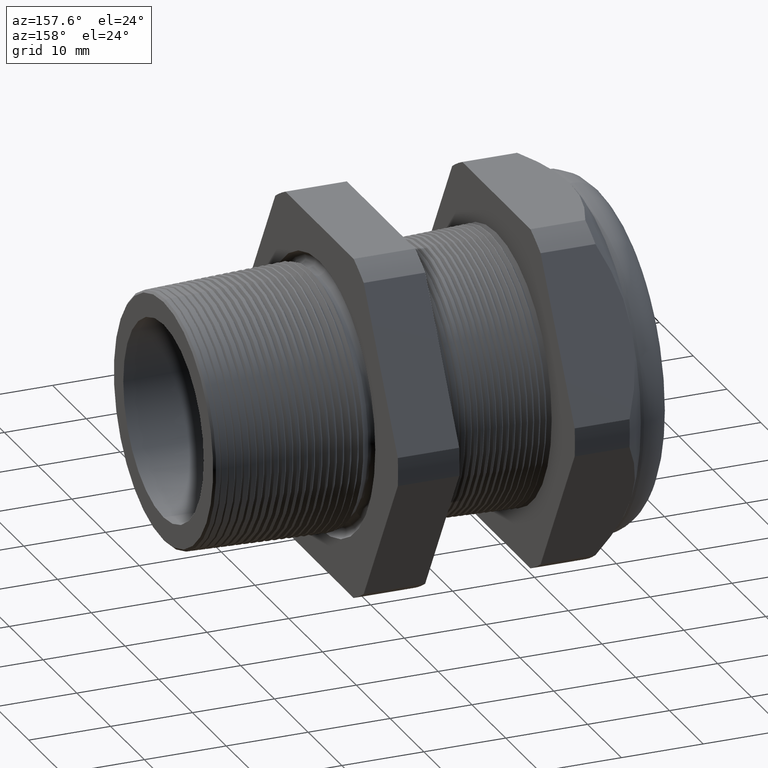
[diagram: clean part render]
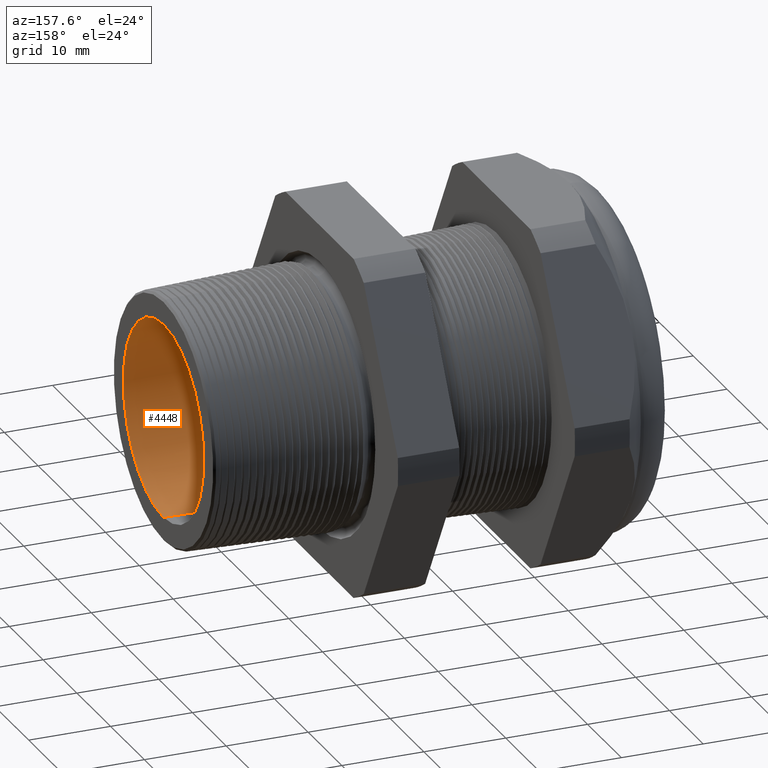
[diagram: same view with one face highlighted and labeled with its STEP entity id]
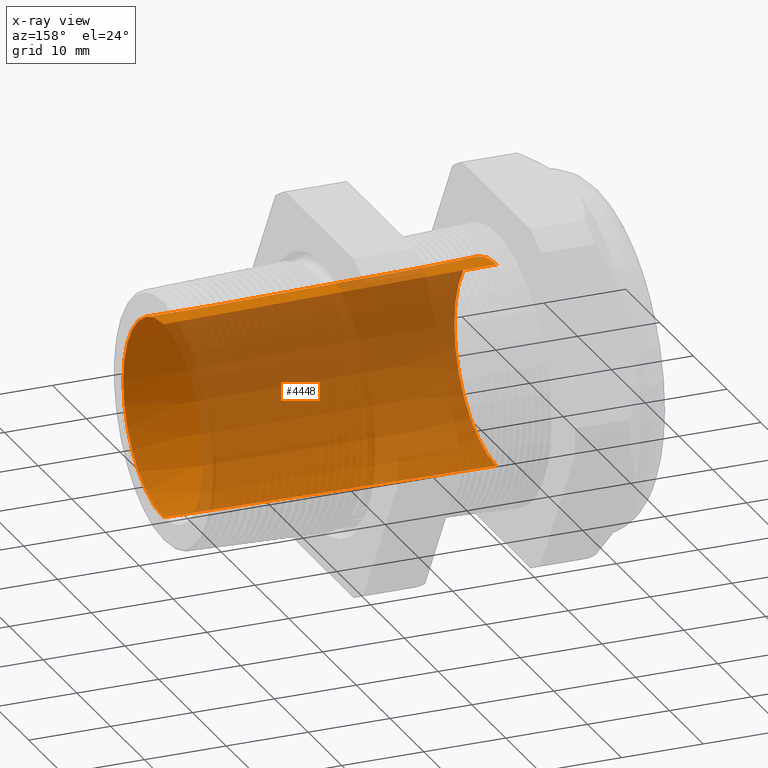
[diagram: x-ray of the same camera — body ghosted, the highlighted face saturated]
A machine part, auxiliary view. The second image highlights one B-rep face of the part: STEP entity #4448.
The next image is the same camera in x-ray: the body ghosted, the highlighted face saturated — about 79% of this face is hidden behind the body in this view.
In plain terms, the highlighted conical surface has half-angle 0.748 deg.
Its self-contained STEP definition (entity closure, byte-faithful):
#4418 = VERTEX_POINT ( 'NONE', #6719 ) ;
#4419 = EDGE_CURVE ( 'NONE', #4418, #4434, #6718, .T. ) ;
#4428 = ORIENTED_EDGE ( 'NONE', *, *, #4432, .T. ) ;
#4429 = VERTEX_POINT ( 'NONE', #6695 ) ;
#4430 = VERTEX_POINT ( 'NONE', #6694 ) ;
#4432 = EDGE_CURVE ( 'NONE', #4429, #4430, #6693, .T. ) ;
#4433 = ORIENTED_EDGE ( 'NONE', *, *, #4436, .T. ) ;
#4434 = VERTEX_POINT ( 'NONE', #6754 ) ;
#4435 = ORIENTED_EDGE ( 'NONE', *, *, #4419, .F. ) ;
#4436 = EDGE_CURVE ( 'NONE', #4430, #4434, #6753, .T. ) ;
#4439 = EDGE_LOOP ( 'NONE', ( #4428, #4433, #4435, #4495 ) ) ;
#4448 = ADVANCED_FACE ( 'NONE', ( #6733 ), #6730, .F. ) ;
#4495 = ORIENTED_EDGE ( 'NONE', *, *, #4497, .F. ) ;
#4497 = EDGE_CURVE ( 'NONE', #4429, #4418, #6841, .T. ) ;
#6692 = CARTESIAN_POINT ( 'NONE',  ( 0.4400000000000001100, 0.0000000000000000000, 0.0000000000000000000 ) ) ;
#6693 = CIRCLE ( 'NONE', #6757, 0.4691157701456586900 ) ;
#6694 = CARTESIAN_POINT ( 'NONE',  ( 0.4400000000000001100, 5.872890289603146600E-017, -0.4691157701456586900 ) ) ;
#6695 = CARTESIAN_POINT ( 'NONE',  ( 0.4400000000000001100, 0.0000000000000000000, 0.4691157701456586900 ) ) ;
#6714 = DIRECTION ( 'NONE',  ( 0.0000000000000000000, 0.0000000000000000000, -1.000000000000000000 ) ) ;
#6715 = DIRECTION ( 'NONE',  ( 1.000000000000000000, 0.0000000000000000000, 0.0000000000000000000 ) ) ;
#6716 = CARTESIAN_POINT ( 'NONE',  ( -1.160314960629921200, 0.0000000000000000000, 0.0000000000000000000 ) ) ;
#6717 = AXIS2_PLACEMENT_3D ( 'NONE', #6716, #6715, #6714 ) ;
#6718 = CIRCLE ( 'NONE', #6717, 0.4899999999999999900 ) ;
#6719 = CARTESIAN_POINT ( 'NONE',  ( -1.160314960629921200, 6.000769315822029800E-017, 0.4899999999999999900 ) ) ;
#6727 = DIRECTION ( 'NONE',  ( 0.0000000000000000000, 0.0000000000000000000, 1.000000000000000000 ) ) ;
#6728 = DIRECTION ( 'NONE',  ( -1.000000000000000000, 0.0000000000000000000, 0.0000000000000000000 ) ) ;
#6729 = AXIS2_PLACEMENT_3D ( 'NONE', #6732, #6728, #6727 ) ;
#6730 = CONICAL_SURFACE ( 'NONE', #6729, 0.4899999999999999900, 0.01304933399369762400 ) ;
#6732 = CARTESIAN_POINT ( 'NONE',  ( -1.160314960629921200, 0.0000000000000000000, 0.0000000000000000000 ) ) ;
#6733 = FACE_OUTER_BOUND ( 'NONE', #4439, .T. ) ;
#6750 = DIRECTION ( 'NONE',  ( -0.9999148586493628000, 1.598037156080085500E-018, -0.01304896364562174900 ) ) ;
#6751 = VECTOR ( 'NONE', #6750, 39.37007874015748100 ) ;
#6752 = CARTESIAN_POINT ( 'NONE',  ( -1.160314960629921200, 6.000769315822029800E-017, -0.4899999999999999900 ) ) ;
#6753 = LINE ( 'NONE', #6752, #6751 ) ;
#6754 = CARTESIAN_POINT ( 'NONE',  ( -1.160314960629921200, 0.0000000000000000000, -0.4899999999999999900 ) ) ;
#6755 = DIRECTION ( 'NONE',  ( 0.0000000000000000000, 0.0000000000000000000, -1.000000000000000000 ) ) ;
#6756 = DIRECTION ( 'NONE',  ( 1.000000000000000000, 0.0000000000000000000, 0.0000000000000000000 ) ) ;
#6757 = AXIS2_PLACEMENT_3D ( 'NONE', #6692, #6756, #6755 ) ;
#6838 = DIRECTION ( 'NONE',  ( -0.9999148586493628000, 0.0000000000000000000, 0.01304896364562174900 ) ) ;
#6839 = VECTOR ( 'NONE', #6838, 39.37007874015748100 ) ;
#6840 = CARTESIAN_POINT ( 'NONE',  ( -1.160314960629921200, 0.0000000000000000000, 0.4899999999999999900 ) ) ;
#6841 = LINE ( 'NONE', #6840, #6839 ) ;